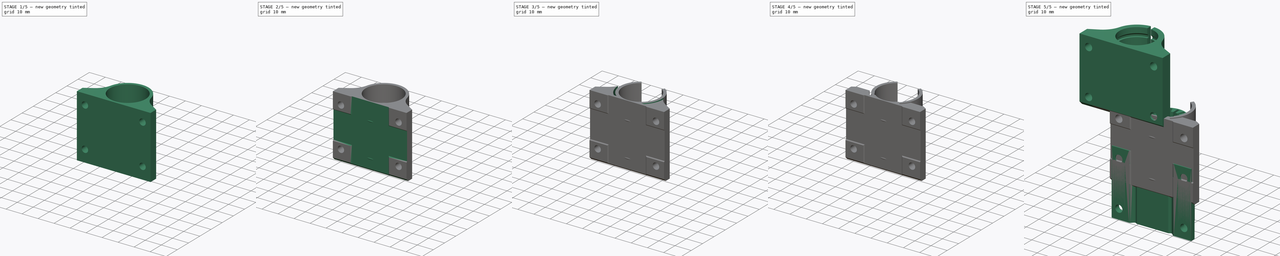
[diagram: build sequence overview — one tinted view per stage of 5, left to right]
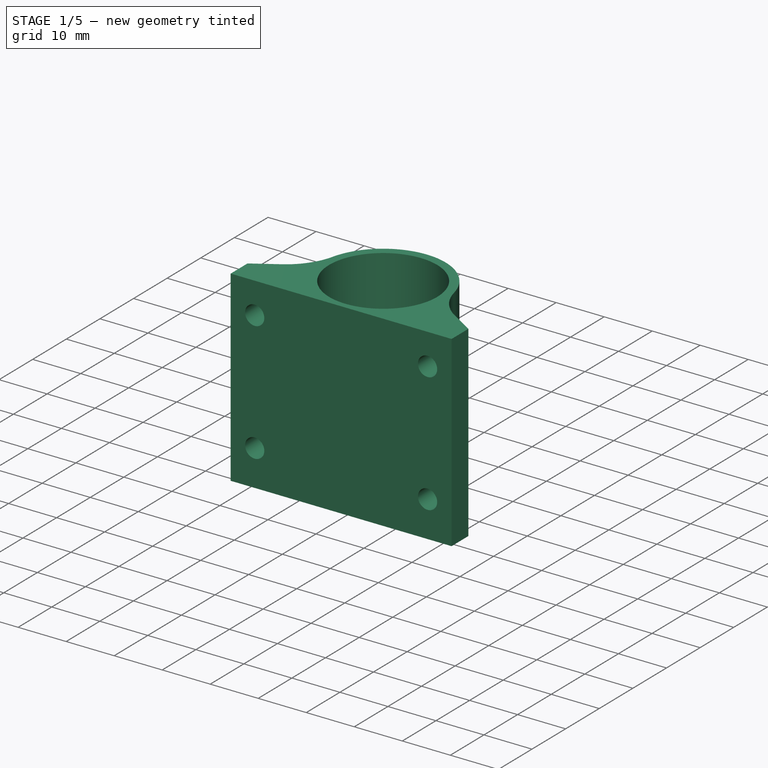
[diagram: stage 1 of 5 — iso view after this stage's code; geometry added in this stage tinted green]
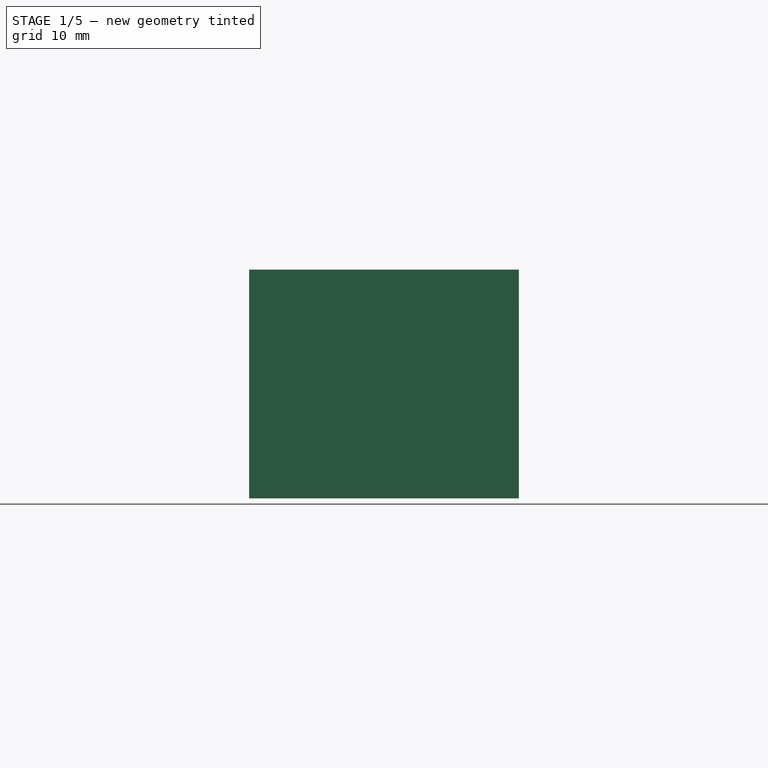
[diagram: stage 1 of 5 — front view after this stage's code; geometry added in this stage tinted green]
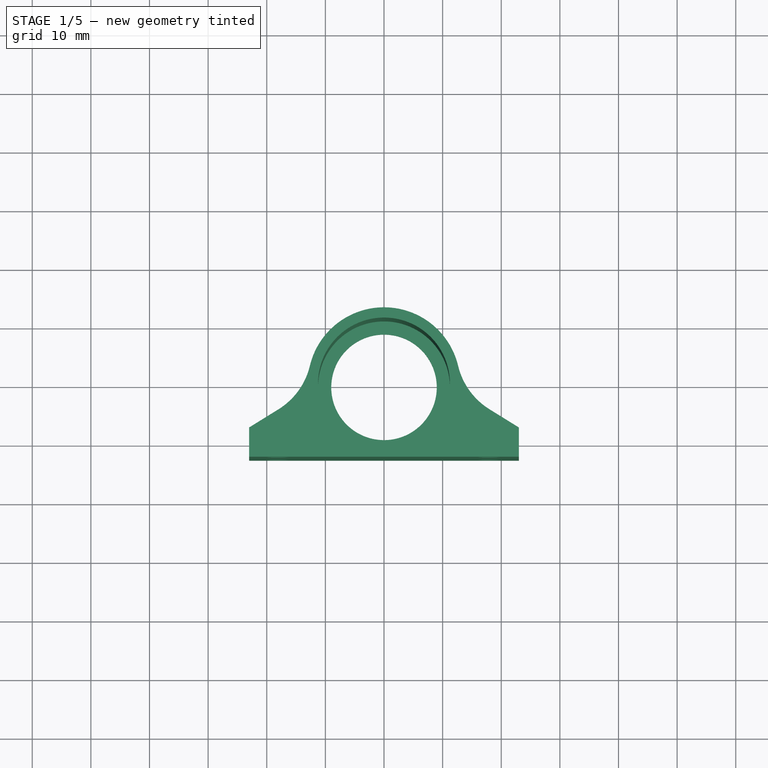
[diagram: stage 1 of 5 — top view after this stage's code; geometry added in this stage tinted green]
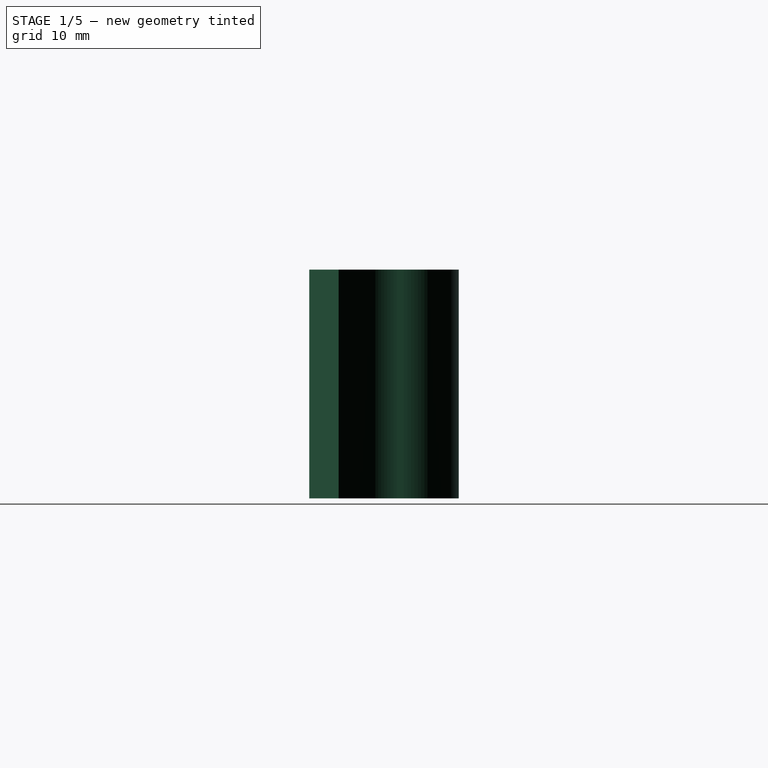
[diagram: stage 1 of 5 — right view after this stage's code; geometry added in this stage tinted green]
FCSTD DOCUMENT  (FreeCAD 0.17R13528 (Git))
Label: Y_bearing_holder_v1.4-12mm
License: CreativeCommons Attribution-ShareAlike
LicenseURL: http://creativecommons.org/licenses/by-sa/4.0/
objects: Sketcher::SketchObject×12, PartDesign::Pocket×10, Part::FeaturePython×3, PartDesign::Pad×1, PartDesign::Revolution×1, PartDesign::Chamfer×1, PartDesign::Fillet×1, PartDesign::Body×1
note: 42 computed .brp shape members not serialized (recipe doc carries the construction recipe); baked Part::Feature solids carry a one-line shape summary decoded from their .brp

FEATURE [Sketcher::SketchObject] Sketch
  MapMode = 5
  Support = -> [XY_Plane]
  sketch-geometry (9):
    g0: ArcOfCircle CenterX=-24.3182 CenterY=5.79854 CenterZ=0 NormalX=0 NormalY=0 NormalZ=1 AngleXU=0 Radius=12 StartAngle=5.26689 EndAngle=6.04911
    g1: ArcOfCircle CenterX=24.3182 CenterY=5.79854 CenterZ=0 NormalX=0 NormalY=0 NormalZ=1 AngleXU=0 Radius=12 StartAngle=3.37567 EndAngle=4.15789
    g2: LineSegment StartX=-18 StartY=-4.40341 StartZ=0 EndX=-23 EndY=-7.5 EndZ=0
    g3: LineSegment StartX=-23 StartY=-7.5 StartZ=0 EndX=-23 EndY=-12.5 EndZ=0
    g4: LineSegment StartX=-23 StartY=-12.5 StartZ=0 EndX=23 EndY=-12.5 EndZ=0
    g5: LineSegment StartX=23 StartY=-12.5 StartZ=0 EndX=23 EndY=-7.5 EndZ=0
    g6: LineSegment StartX=23 StartY=-7.5 StartZ=0 EndX=18 EndY=-4.40341 EndZ=0
    g7: ArcOfCircle CenterX=0 CenterY=0 CenterZ=0 NormalX=0 NormalY=0 NormalZ=1 AngleXU=0 Radius=13 StartAngle=0.234072 EndAngle=2.90752
    g8: Circle CenterX=0 CenterY=0 CenterZ=0 NormalX=0 NormalY=0 NormalZ=1 AngleXU=0 Radius=9
  constraints (26):
    c: Coincident(g2,g3)
    c: Coincident(g3,g4)
    c: Coincident(g5,g6)
    c: Vertical(g5)
    c: Vertical(g3)
    c: DistanceY(g3) = -12.5
    c: Equal(g3,g5)
    c: DistanceY(g5,g5) = 5
    c: Tangent(g1,g6) = 1.5708
    c: Tangent(g0,g2) = 1.5708
    c: Equal(g6,g2)
    c: DistanceX(g6,g6) = 5
    c: Radius(g0) = 12
    c: Equal(g1,g0)
    c: Coincident(g4,g5)
    c: Horizontal(g4)
    c: DistanceX(g4) = 23
    c: DistanceX(g4,g4) = 46
    c: DistanceX(g2,g2) = 5
    c: Coincident(g1,g7)
    c: Coincident(g0,g7)
    c: Radius(g7) = 13
    c: Tangent(g1,g7)
    c: Coincident(g7,g-1)
    c: Radius(g8) = 9
    c: Coincident(g7,g8)
FEATURE [PartDesign::Pad] Pad
  Length = 39
  Length2 = 100
  Profile = -> Sketch
  Type = 0
FEATURE [Sketcher::SketchObject] Sketch008
  MapMode = 5
  Placement = pos=(-23,0,0) rot=(0.57735,-0.57735,-0.57735;2.0944rad)
  sketch-geometry (4):
    g0: LineSegment StartX=12.5 StartY=29 StartZ=0 EndX=12 EndY=28.5 EndZ=0
    g1: LineSegment StartX=12 StartY=28.5 StartZ=0 EndX=12 EndY=11.5 EndZ=0
    g2: LineSegment StartX=12 StartY=11.5 StartZ=0 EndX=12.5 EndY=11 EndZ=0
    g3: LineSegment StartX=12.5 StartY=11 StartZ=0 EndX=12.5 EndY=29 EndZ=0
  constraints (12):
    c: Coincident(g0,g1)
    c: Vertical(g1)
    c: Coincident(g1,g2)
    c: Coincident(g2,g3)
    c: Coincident(g3,g0)
    c: Vertical(g3)
    c: Angle(g0) = -2.35619
    c: DistanceX(g2) = 12.5
    c: Angle(g2) = -0.785398
    c: DistanceY(g2) = 11
    c: DistanceX(g0,g0) = 0.5
    c: DistanceY(g0) = 29
FEATURE [Sketcher::SketchObject] Sketch009
  MapMode = 5
  Placement = pos=(0,0,39) rot=(0,0,1;0rad)
  sketch-geometry (4):
    g0: LineSegment StartX=0 StartY=0 StartZ=0 EndX=-10 EndY=15 EndZ=0
    g1: LineSegment StartX=-10 StartY=15 StartZ=0 EndX=10 EndY=15 EndZ=0
    g2: LineSegment StartX=10 StartY=15 StartZ=0 EndX=0 EndY=0 EndZ=0
    g3: LineSegment [constr] StartX=-5 StartY=7.5 StartZ=0 EndX=5 EndY=7.5 EndZ=0
  constraints (12):
    c: Coincident(g-1,g0)
    c: Coincident(g0,g1)
    c: Horizontal(g1)
    c: Coincident(g1,g2)
    c: Coincident(g2,g0)
    c: Equal(g2,g0)
    c: PointOnObject(g3,g0)
    c: PointOnObject(g3,g2)
    c: Horizontal(g3)
    c: DistanceX(g3,g3) = 10
    c: DistanceY(g2,g2) = 15
    c: DistanceX(g1,g1) = 20
FEATURE [Sketcher::SketchObject] Sketch010
  MapMode = 4
  Placement = pos=(1,0,0) rot=(0.57735,-0.57735,-0.57735;2.0944rad)
  sketch-geometry (5):
    g0: Circle CenterX=-11.375 CenterY=27.85 CenterZ=0 NormalX=0 NormalY=0 NormalZ=1 AngleXU=0 Radius=0.75
    g1: Circle CenterX=-11.375 CenterY=6.75 CenterZ=0 NormalX=0 NormalY=0 NormalZ=1 AngleXU=0 Radius=0.75
    g2: GeomPoint X=-11.375 Y=28.6 Z=0
    g3: GeomPoint X=-11.375 Y=6 Z=0
    g4: LineSegment [constr] StartX=-11.375 StartY=27.85 StartZ=0 EndX=-11.375 EndY=6.75 EndZ=0
  constraints (12):
    c: Radius(g1) = 0.75
    c: Equal(g1,g0)
    c: DistanceY(g1) = 6.75
    c: PointOnObject(g2,g0)
    c: PointOnObject(g3,g1)
    c: DistanceY(g3,g2) = 22.6
    c: Coincident(g4,g1)
    c: Vertical(g4)
    c: Coincident(g0,g4)
    c: DistanceX(g1) = -11.375
    c: PointOnObject(g3,g4)
    c: PointOnObject(g2,g4)
FEATURE [PartDesign::Pocket] Pocket
  BaseFeature = -> Pad
  Length = 38
  Length2 = 100
  Profile = -> Sketch001
  Refine = true
  Type = 0
FEATURE [PartDesign::Pocket] Pocket001
  BaseFeature = -> Pocket
  Length = 6
  Length2 = 100
  Profile = -> Sketch005
  Refine = true
  Type = 0
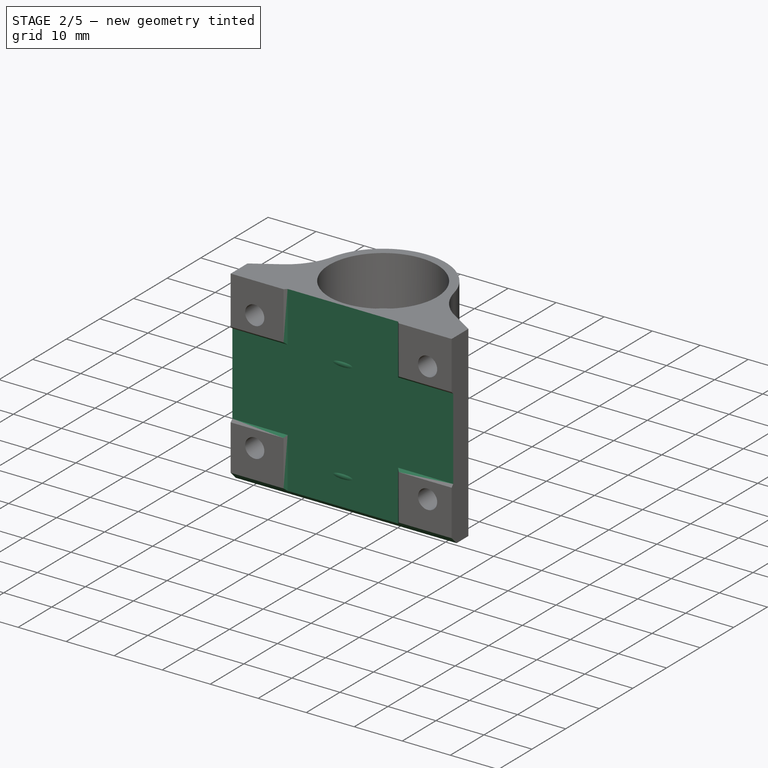
[diagram: stage 2 of 5 — iso view after this stage's code; geometry added in this stage tinted green]
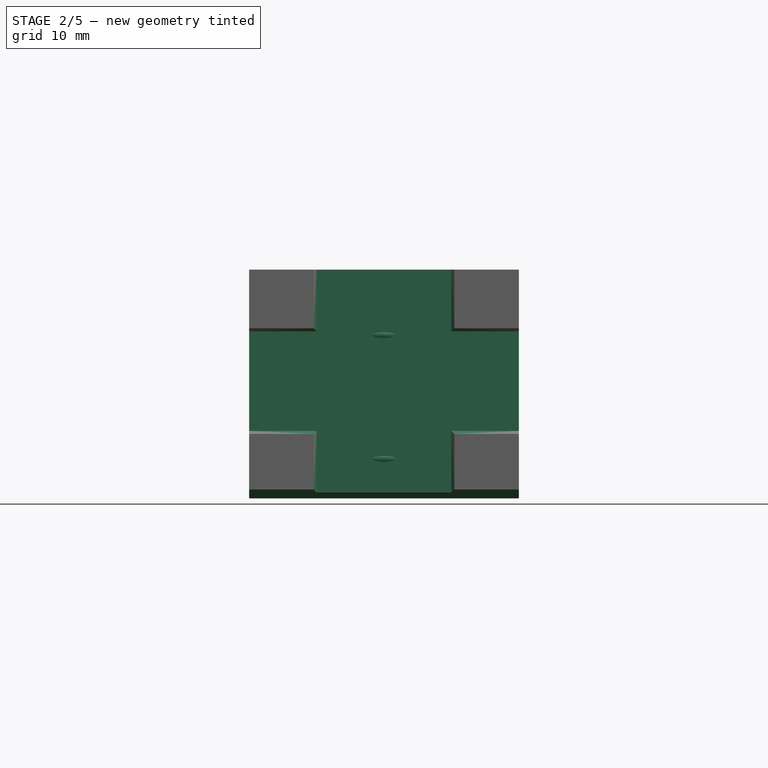
[diagram: stage 2 of 5 — front view after this stage's code; geometry added in this stage tinted green]
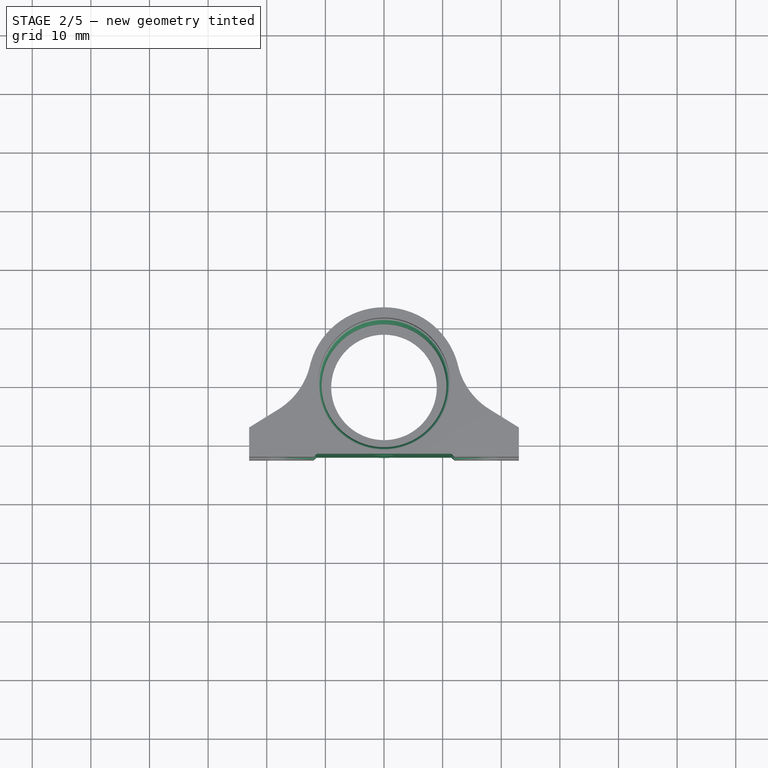
[diagram: stage 2 of 5 — top view after this stage's code; geometry added in this stage tinted green]
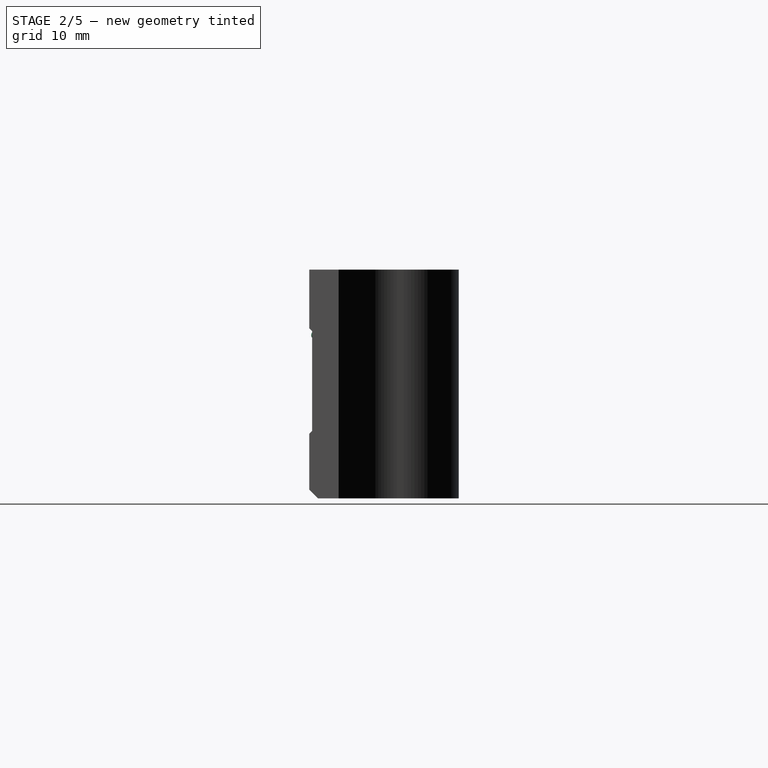
[diagram: stage 2 of 5 — right view after this stage's code; geometry added in this stage tinted green]
FEATURE [PartDesign::Pocket] Pocket002
  BaseFeature = -> Pocket001
  Length = 5
  Length2 = 100
  Profile = -> Sketch006
  Refine = true
  Type = 1
FEATURE [PartDesign::Pocket] Pocket003
  BaseFeature = -> Pocket002
  Length = 5
  Length2 = 100
  Profile = -> Sketch008
  Refine = true
  Type = 1
FEATURE [Sketcher::SketchObject] Sketch012
  MapMode = 5
  Placement = pos=(-23,0,0) rot=(0.57735,-0.57735,-0.57735;2.0944rad)
  sketch-geometry (3):
    g0: LineSegment StartX=11 StartY=0 StartZ=0 EndX=12.5 EndY=1.5 EndZ=0
    g1: LineSegment StartX=12.5 StartY=1.5 StartZ=0 EndX=12.5 EndY=0 EndZ=0
    g2: LineSegment StartX=12.5 StartY=0 StartZ=0 EndX=11 EndY=0 EndZ=0
  constraints (9):
    c: PointOnObject(g0,g-1)
    c: Coincident(g0,g1)
    c: PointOnObject(g1,g-1)
    c: Vertical(g1)
    c: Coincident(g1,g2)
    c: Coincident(g2,g0)
    c: Equal(g1,g2)
    c: DistanceX(g1) = 12.5
    c: DistanceY(g1,g1) = 1.5
FEATURE [Sketcher::SketchObject] Sketch013
  MapMode = 5
  Placement = pos=(0,-7,0) rot=(1,0,0;1.5708rad)
  sketch-geometry (8):
    g0: LineSegment [constr] StartX=-18 StartY=32.5 StartZ=0 EndX=18 EndY=32.5 EndZ=0
    g1: LineSegment [constr] StartX=18 StartY=32.5 StartZ=0 EndX=18 EndY=7.5 EndZ=0
    g2: LineSegment [constr] StartX=18 StartY=7.5 StartZ=0 EndX=-18 EndY=7.5 EndZ=0
    g3: LineSegment [constr] StartX=-18 StartY=7.5 StartZ=0 EndX=-18 EndY=32.5 EndZ=0
    g4: Circle CenterX=-18 CenterY=32.5 CenterZ=0 NormalX=0 NormalY=0 NormalZ=1 AngleXU=0 Radius=4
    g5: Circle CenterX=18 CenterY=32.5 CenterZ=0 NormalX=0 NormalY=0 NormalZ=1 AngleXU=0 Radius=4
    g6: Circle CenterX=18 CenterY=7.5 CenterZ=0 NormalX=0 NormalY=0 NormalZ=1 AngleXU=0 Radius=4
    g7: Circle CenterX=-18 CenterY=7.5 CenterZ=0 NormalX=0 NormalY=0 NormalZ=1 AngleXU=0 Radius=4
  constraints (20):
    c: Coincident(g0,g1)
    c: Coincident(g1,g2)
    c: Coincident(g2,g3)
    c: Coincident(g3,g0)
    c: Horizontal(g0)
    c: Horizontal(g2)
    c: Vertical(g1)
    c: Vertical(g3)
    c: Coincident(g4,g0)
    c: Coincident(g5,g0)
    c: Coincident(g6,g1)
    c: Coincident(g7,g2)
    c: DistanceY(g7) = 7.5
    c: DistanceX(g7) = -18
    c: DistanceX(g2,g2) = 36
    c: DistanceY(g1,g1) = 25
    c: Equal(g4,g5)
    c: Equal(g4,g6)
    c: Equal(g4,g7)
    c: Radius(g4) = 4
FEATURE [PartDesign::Revolution] Revolution
  Angle = 360
  Axis = (0,0,1)
  Base = (0,0,0)
  BaseFeature = -> Pocket003
  Profile = -> Sketch010
  ReferenceAxis = -> Z_Axis
  Refine = true
FEATURE [PartDesign::Pocket] Pocket004
  BaseFeature = -> Revolution
  Length = 5
  Length2 = 100
  Profile = -> Sketch012
  Refine = true
  Type = 1
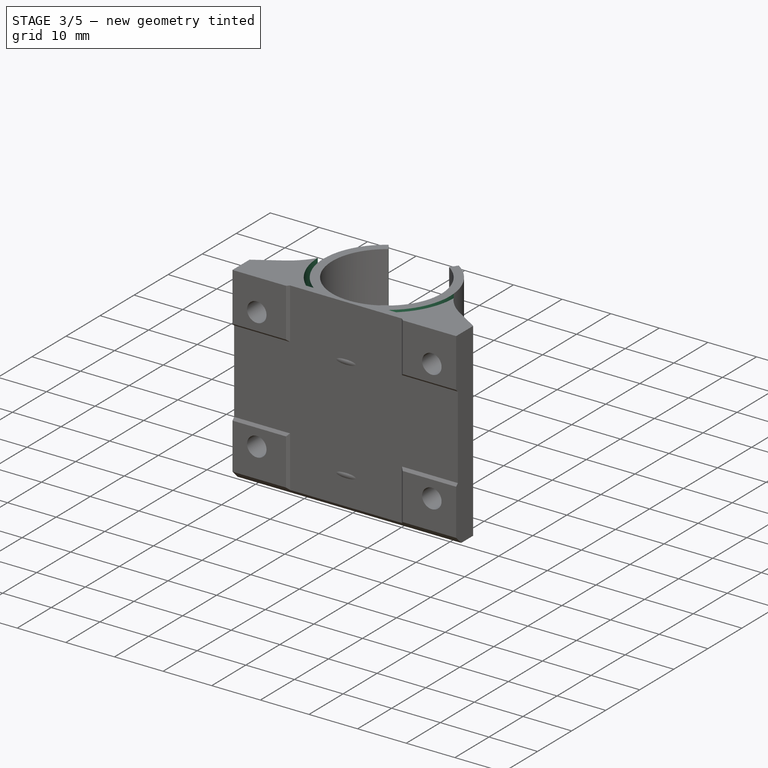
[diagram: stage 3 of 5 — iso view after this stage's code; geometry added in this stage tinted green]
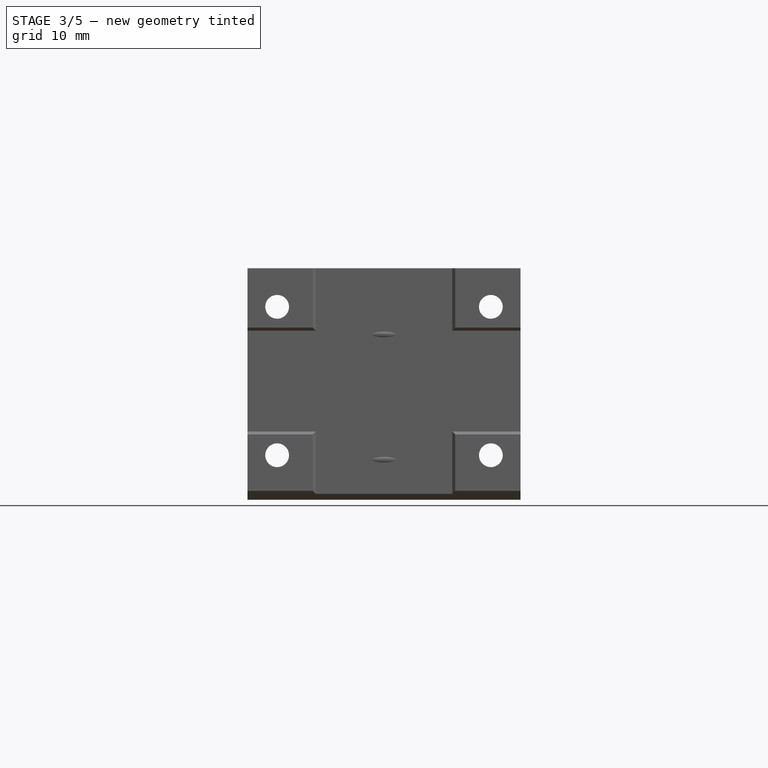
[diagram: stage 3 of 5 — front view after this stage's code; geometry added in this stage tinted green]
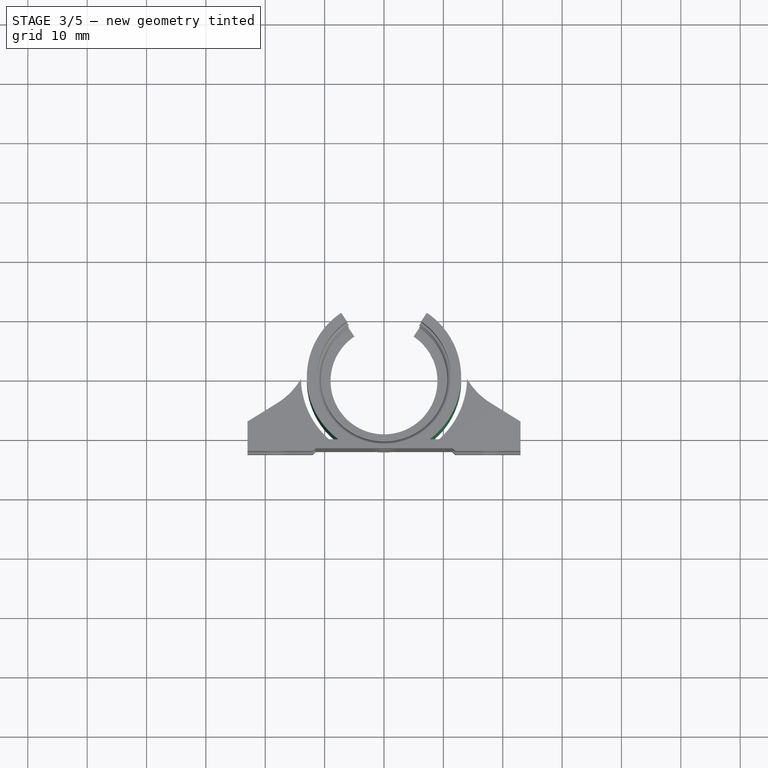
[diagram: stage 3 of 5 — top view after this stage's code; geometry added in this stage tinted green]
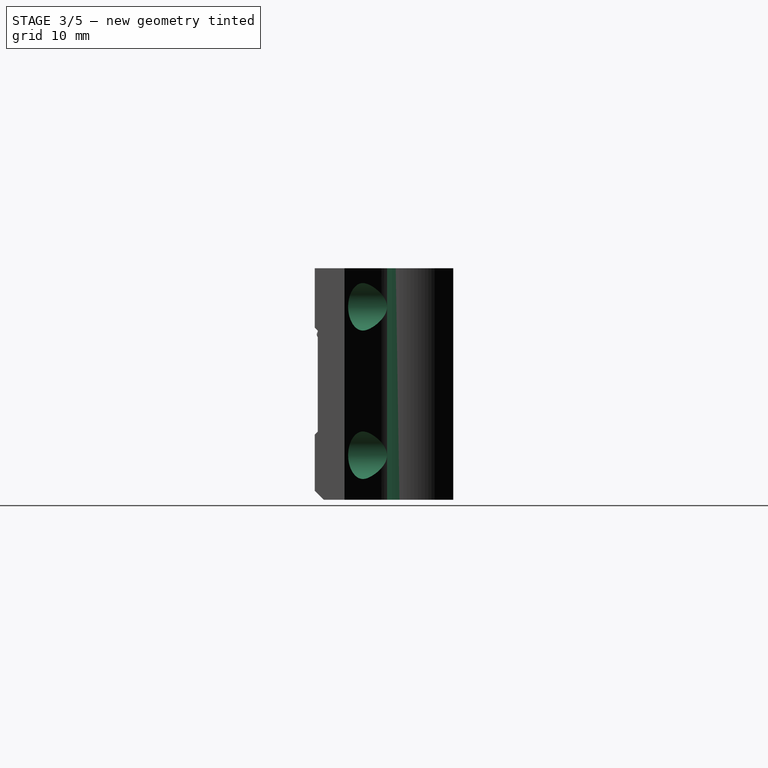
[diagram: stage 3 of 5 — right view after this stage's code; geometry added in this stage tinted green]
FEATURE [PartDesign::Pocket] Pocket005
  BaseFeature = -> Pocket004
  Length = 5
  Length2 = 100
  Profile = -> Sketch009
  Refine = true
  Type = 1
FEATURE [PartDesign::Pocket] Pocket006
  BaseFeature = -> Pocket005
  Length = 5
  Length2 = 100
  Profile = -> Sketch013
  Refine = true
  Type = 1
FEATURE [Sketcher::SketchObject] Sketch014
  MapMode = 5
  Placement = pos=(0,0,0) rot=(1,0,0;3.14159rad)
  Support = -> [Pocket006]
  sketch-geometry (5):
    g0: ArcOfCircle CenterX=0 CenterY=0 CenterZ=0 NormalX=0 NormalY=0 NormalZ=1 AngleXU=0 Radius=14 StartAngle=2.29353 EndAngle=7.13125
    g1: ArcOfCircle CenterX=0 CenterY=0 CenterZ=0 NormalX=0 NormalY=0 NormalZ=1 AngleXU=0 Radius=13 StartAngle=2.20137 EndAngle=7.22341
    g2: LineSegment [constr] StartX=-7.66485 StartY=10.5 StartZ=0 EndX=7.66485 EndY=10.5 EndZ=0
    g3: LineSegment StartX=-7.66485 StartY=10.5 StartZ=0 EndX=-9.26013 EndY=10.5 EndZ=0
    g4: LineSegment StartX=9.26013 StartY=10.5 StartZ=0 EndX=7.66485 EndY=10.5 EndZ=0
  constraints (14):
    c: Coincident(g0,g-1)
    c: Coincident(g1,g0)
    c: Coincident(g2,g1)
    c: Coincident(g2,g1)
    c: Horizontal(g2)
    c: PointOnObject(g0,g2)
    c: DistanceY(g1) = 10.5
    c: PointOnObject(g0,g2)
    c: Coincident(g3,g1)
    c: Coincident(g3,g0)
    c: Coincident(g4,g0)
    c: Coincident(g4,g1)
    c: Radius(g1) = 13
    c: Radius(g0) = 14
FEATURE [PartDesign::Pocket] Pocket007
  BaseFeature = -> Pocket006
  Length = 5
  Length2 = 100
  Profile = -> Sketch014
  Refine = true
  Type = 1
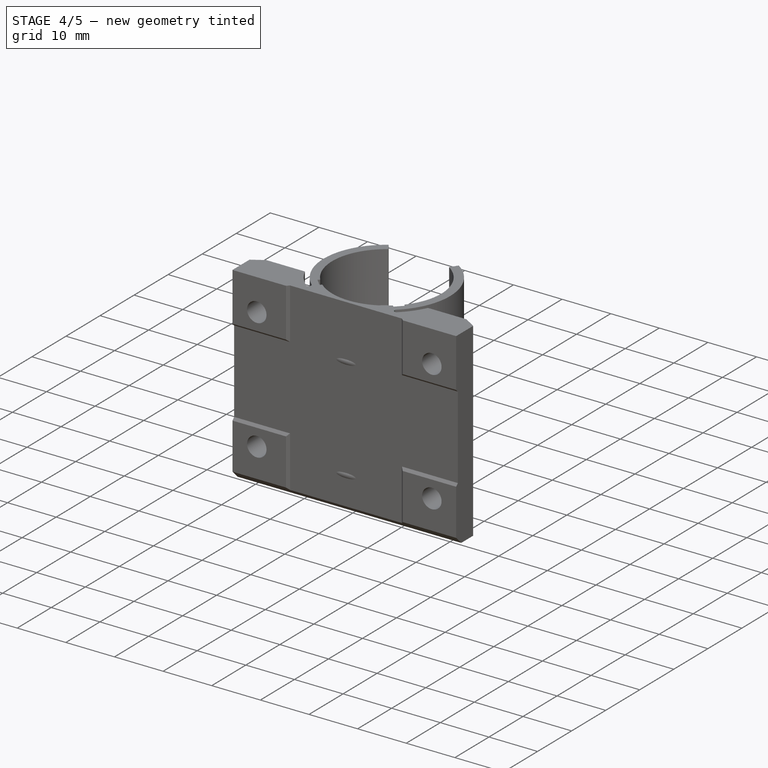
[diagram: stage 4 of 5 — iso view after this stage's code; geometry added in this stage tinted green]
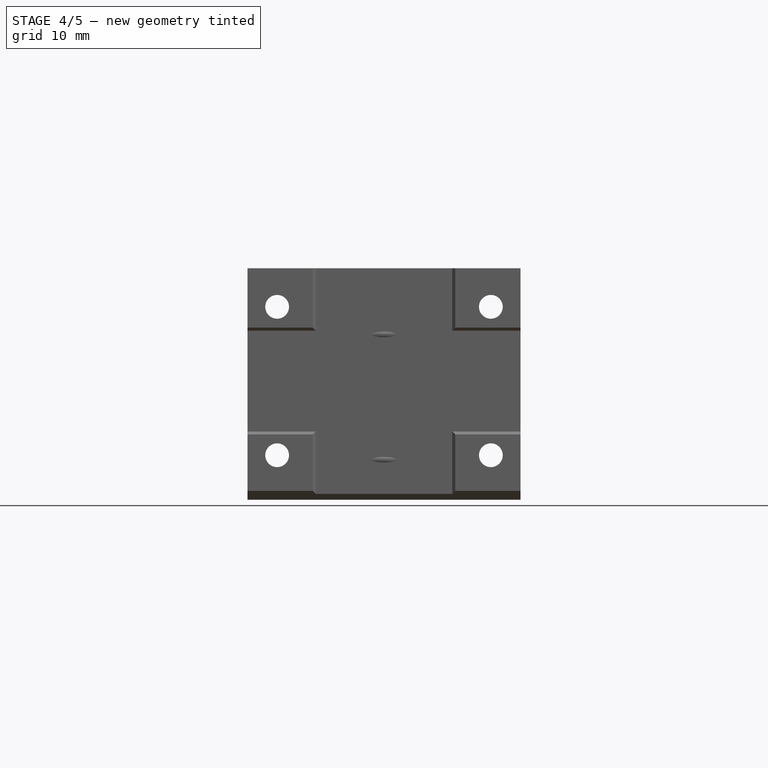
[diagram: stage 4 of 5 — front view after this stage's code; geometry added in this stage tinted green]
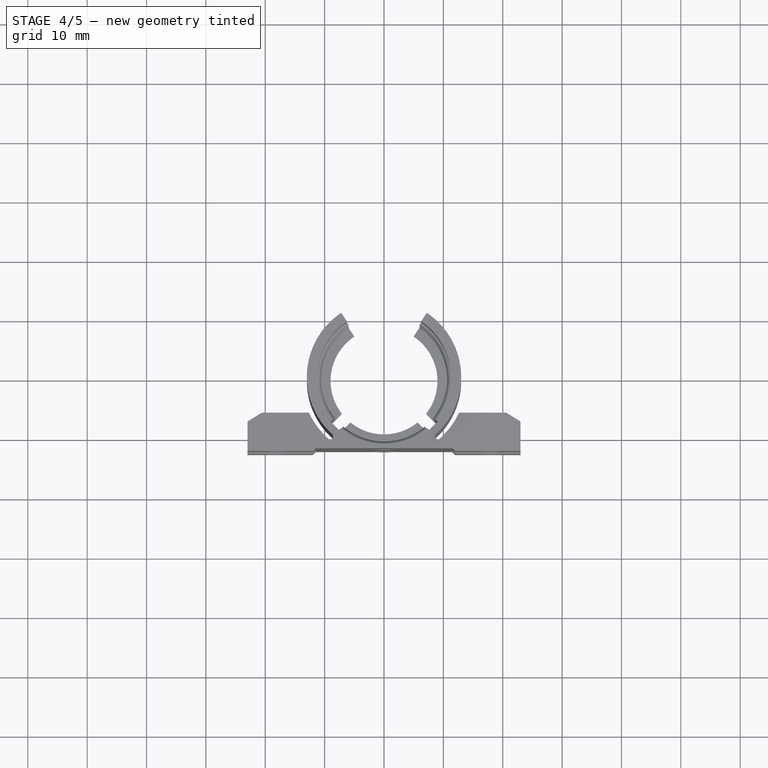
[diagram: stage 4 of 5 — top view after this stage's code; geometry added in this stage tinted green]
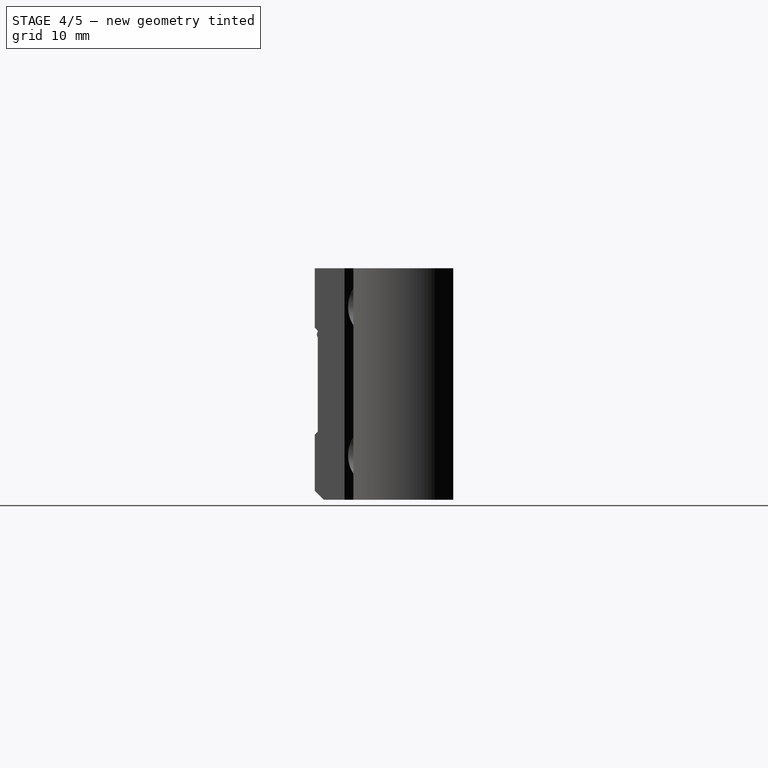
[diagram: stage 4 of 5 — right view after this stage's code; geometry added in this stage tinted green]
FEATURE [Sketcher::SketchObject] Sketch011
  MapMode = 5
  Placement = pos=(0,0,39) rot=(0,0,1;0rad)
  Support = -> [Pocket007]
  sketch-geometry (7):
    g0: LineSegment StartX=0 StartY=1.5 StartZ=0 EndX=-9.01561 EndY=-7.51561 EndZ=0
    g1: LineSegment StartX=-9.01561 StartY=-7.51561 StartZ=0 EndX=-7.6014 EndY=-8.92983 EndZ=0
    g2: LineSegment StartX=-7.6014 StartY=-8.92983 StartZ=0 EndX=0 EndY=-1.32843 EndZ=0
    g3: LineSegment StartX=0 StartY=-1.32843 StartZ=0 EndX=7.6014 EndY=-8.92983 EndZ=0
    g4: LineSegment StartX=7.6014 StartY=-8.92983 StartZ=0 EndX=9.01561 EndY=-7.51561 EndZ=0
    g5: LineSegment StartX=9.01561 StartY=-7.51561 StartZ=0 EndX=0 EndY=1.5 EndZ=0
    g6: LineSegment [constr] StartX=7.6014 StartY=-8.92983 StartZ=0 EndX=-7.6014 EndY=-8.92983 EndZ=0
  constraints (20):
    c: Coincident(g0,g1)
    c: Coincident(g1,g2)
    c: PointOnObject(g2,g-2)
    c: Coincident(g2,g3)
    c: Coincident(g3,g4)
    c: Coincident(g4,g5)
    c: PointOnObject(g5,g-2)
    c: Coincident(g0,g5)
    c: Coincident(g6,g3)
    c: Coincident(g6,g1)
    c: Horizontal(g6)
    c: Equal(g2,g3)
    c: Equal(g0,g5)
    c: Equal(g4,g1)
    c: Angle(g4) = 0.785398
    c: Perpendicular(g4,g3)
    c: Perpendicular(g1,g0)
    c: Distance(g4,g3) = 2
    c: DistanceY(g-1,g0) = 1.5
    c: Distance(g3) = 10.75
FEATURE [PartDesign::Pocket] Pocket008
  BaseFeature = -> Pocket007
  Length = 5
  Length2 = 100
  Profile = -> Sketch011
  Refine = true
  Type = 1
FEATURE [Sketcher::SketchObject] Sketch015
  MapMode = 5
  Placement = pos=(0,0,39) rot=(0,0,1;0rad)
  sketch-geometry (8):
    g0: LineSegment StartX=-22.25 StartY=-6 StartZ=0 EndX=-22.25 EndY=0 EndZ=0
    g1: LineSegment StartX=-13.5 StartY=0 StartZ=0 EndX=-12.5 EndY=-6 EndZ=0
    g2: LineSegment StartX=-22.25 StartY=0 StartZ=0 EndX=-13.5 EndY=0 EndZ=0
    g3: LineSegment StartX=-22.25 StartY=-6 StartZ=0 EndX=-12.5 EndY=-6 EndZ=0
    g4: LineSegment StartX=22.25 StartY=-6 StartZ=0 EndX=22.25 EndY=0 EndZ=0
    g5: LineSegment StartX=13.5 StartY=0 StartZ=0 EndX=12.5 EndY=-6 EndZ=0
    g6: LineSegment StartX=22.25 StartY=0 StartZ=0 EndX=13.5 EndY=0 EndZ=0
    g7: LineSegment StartX=22.25 StartY=-6 StartZ=0 EndX=12.5 EndY=-6 EndZ=0
  constraints (24):
    c: Vertical(g0)
    c: PointOnObject(g1,g-1)
    c: Coincident(g2,g0)
    c: Coincident(g2,g1)
    c: Horizontal(g2)
    c: Coincident(g3,g0)
    c: Coincident(g3,g1)
    c: Horizontal(g3)
    c: DistanceX(g1) = -13.5
    c: DistanceX(g2,g2) = 8.75
    c: DistanceY(g1,g1) = 6
    c: DistanceX(g3,g3) = 9.75
    c: Vertical(g4)
    c: Coincident(g6,g4)
    c: Coincident(g6,g5)
    c: Horizontal(g6)
    c: Coincident(g7,g4)
    c: Coincident(g7,g5)
    c: Horizontal(g7)
    c: DistanceX(g5) = 13.5
    c: PointOnObject(g4,g-1)
    c: DistanceX(g6,g6) = 8.75
    c: DistanceX(g7,g7) = 9.75
    c: DistanceY(g5,g5) = 6
FEATURE [PartDesign::Pocket] Pocket009
  BaseFeature = -> Pocket008
  Length = 5
  Length2 = 100
  Profile = -> Sketch015
  Refine = true
  Type = 1
FEATURE [PartDesign::Chamfer] Chamfer
  Base = -> Pocket009 [Edge14,Edge33]
  BaseFeature = -> Pocket009
  Size = 2
FEATURE [PartDesign::Fillet] Fillet
  Base = -> Chamfer [Edge102,Edge48]
  BaseFeature = -> Chamfer
  Radius = 0.5
FEATURE [PartDesign::Body] Body
  Group = -> [Sketch,Pad,Sketch001,Sketch005,Sketch006,Sketch008,Sketch009,Sketch010,Pocket,Pocket001,Pocket002,Pocket003,Sketch011,Sketch012,Sketch013,Revolution,Pocket004,Pocket005,Pocket006,Sketch014,Pocket007,Pocket008,Sketch015,Pocket009,Chamfer,Fillet]
  Origin = -> Origin
  Tip = -> Fillet
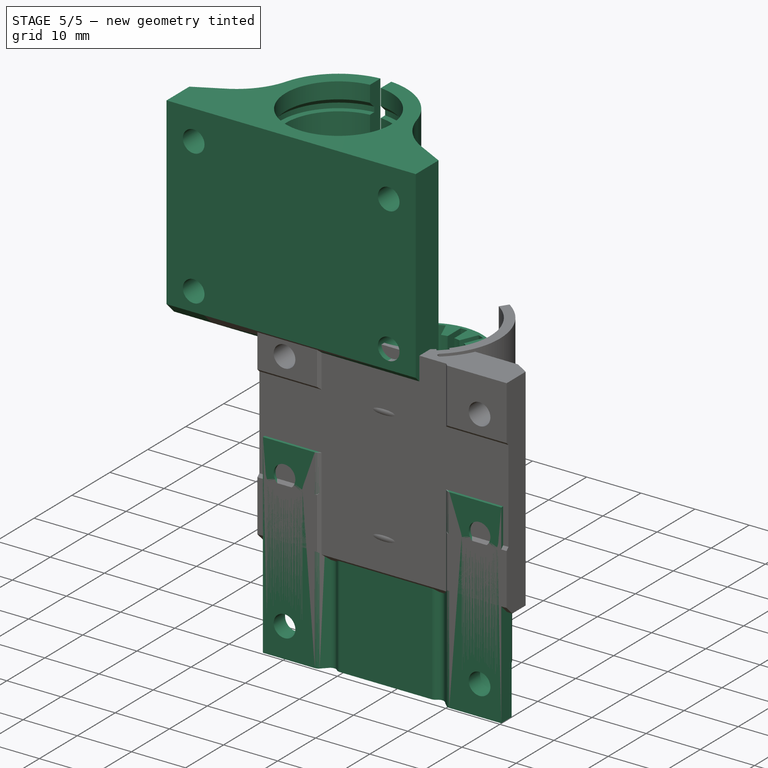
[diagram: stage 5 of 5 — iso view after this stage's code; geometry added in this stage tinted green]
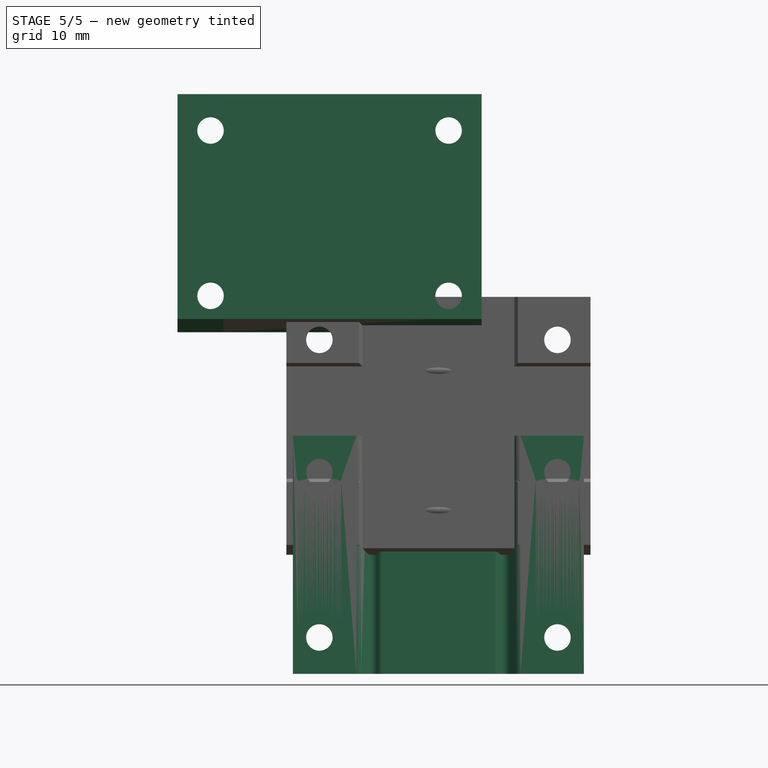
[diagram: stage 5 of 5 — front view after this stage's code; geometry added in this stage tinted green]
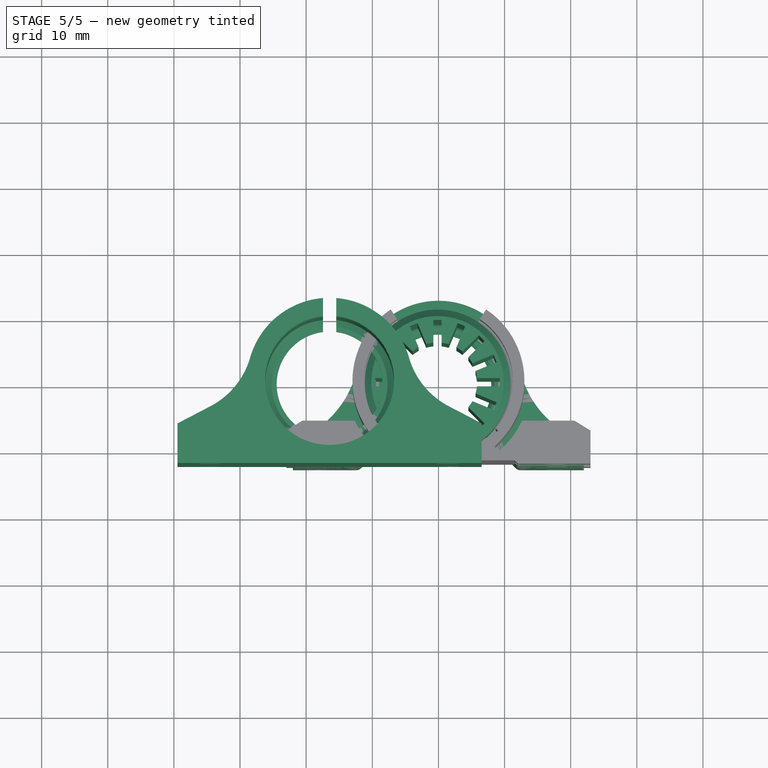
[diagram: stage 5 of 5 — top view after this stage's code; geometry added in this stage tinted green]
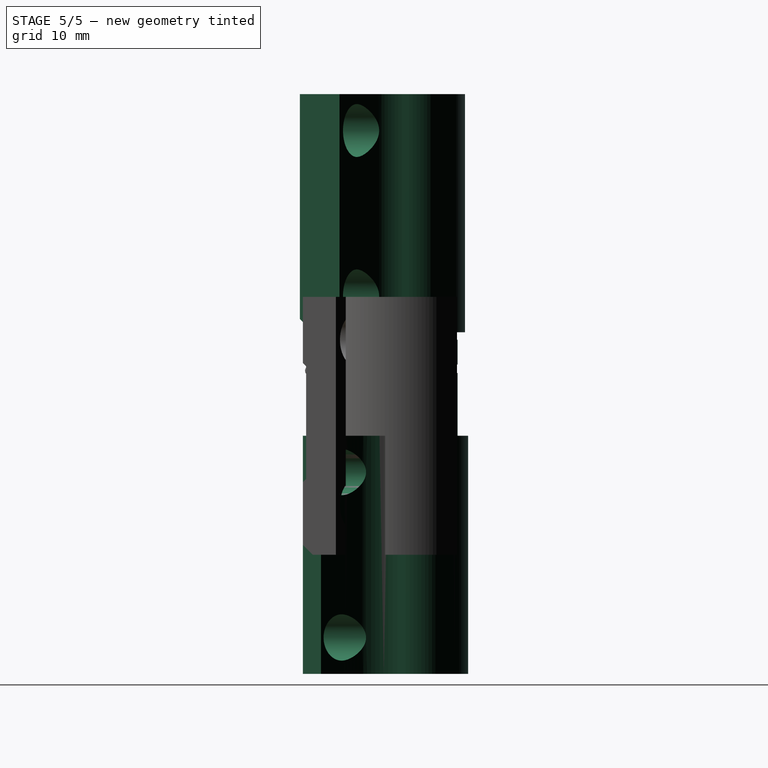
[diagram: stage 5 of 5 — right view after this stage's code; geometry added in this stage tinted green]
FEATURE [Part::FeaturePython] Quiver_Y_bearing_holder_01  # a2plus imported part (geometry in sourceFile) (typed FeaturePython)
  fixedPosition = true
  sourceFile = <userpath>/Projects/taz-quiver/Production_parts/Printed_parts/Y/bearing_holder/Quiver_Y_bearing_holder.fcstd
  timeLastImport = 1.52536e+09
  updateColors = true
FEATURE [Sketcher::SketchObject] Sketch001
  MapMode = 5
  Placement = pos=(0,0,39) rot=(0,0,1;0rad)
  Support = -> [Pad]
  sketch-geometry (1):
    g0: Circle CenterX=0 CenterY=0 CenterZ=0 NormalX=0 NormalY=0 NormalZ=1 AngleXU=0 Radius=11.25
  constraints (2):
    c: Coincident(g0,g-1)
    c: Radius(g0) = 11.25
FEATURE [Sketcher::SketchObject] Sketch005
  MapMode = 5
  Placement = pos=(0,-13,0) rot=(1,0,0;1.5708rad)
  sketch-geometry (12):
    g0: Circle CenterX=-18 CenterY=7.5 CenterZ=0 NormalX=0 NormalY=0 NormalZ=1 AngleXU=0 Radius=2
    g1: Circle [constr] CenterX=-18 CenterY=7.5 CenterZ=0 NormalX=0 NormalY=0 NormalZ=1 AngleXU=0 Radius=4
    g2: Circle [constr] CenterX=18 CenterY=7.5 CenterZ=0 NormalX=0 NormalY=0 NormalZ=1 AngleXU=0 Radius=4
    g3: Circle CenterX=18 CenterY=7.5 CenterZ=0 NormalX=0 NormalY=0 NormalZ=1 AngleXU=0 Radius=2
    g4: Circle CenterX=18 CenterY=32.5 CenterZ=0 NormalX=0 NormalY=0 NormalZ=1 AngleXU=0 Radius=2
    g5: Circle [constr] CenterX=18 CenterY=32.5 CenterZ=0 NormalX=0 NormalY=0 NormalZ=1 AngleXU=0 Radius=4
    g6: Circle CenterX=-18 CenterY=32.5 CenterZ=0 NormalX=0 NormalY=0 NormalZ=1 AngleXU=0 Radius=2
    g7: Circle [constr] CenterX=-18 CenterY=32.5 CenterZ=0 NormalX=0 NormalY=0 NormalZ=1 AngleXU=0 Radius=4
    g8: LineSegment [constr] StartX=-18 StartY=7.5 StartZ=0 EndX=18 EndY=7.5 EndZ=0
    g9: LineSegment [constr] StartX=18 StartY=7.5 StartZ=0 EndX=18 EndY=32.5 EndZ=0
    g10: LineSegment [constr] StartX=18 StartY=32.5 StartZ=0 EndX=-18 EndY=32.5 EndZ=0
    g11: LineSegment [constr] StartX=-18 StartY=32.5 StartZ=0 EndX=-18 EndY=7.5 EndZ=0
  constraints (28):
    c: Coincident(g6,g7)
    c: Coincident(g0,g1)
    c: Coincident(g2,g3)
    c: Coincident(g4,g5)
    c: Radius(g4) = 2
    c: Equal(g4,g6)
    c: Equal(g4,g0)
    c: Equal(g4,g3)
    c: Equal(g2,g5)
    c: Equal(g5,g7)
    c: Equal(g7,g1)
    c: Coincident(g8,g9)
    c: Coincident(g9,g10)
    c: Coincident(g10,g11)
    c: Coincident(g11,g8)
    c: Horizontal(g8)
    c: Horizontal(g10)
    c: Vertical(g9)
    c: Vertical(g11)
    c: Coincident(g6,g10)
    c: Coincident(g4,g9)
    c: Coincident(g2,g8)
    c: Coincident(g0,g8)
    c: DistanceX(g0) = -18
    c: DistanceX(g8,g8) = 36
    c: Radius(g2) = 4
    c: DistanceY(g0) = 7.5
    c: DistanceY(g11,g11) = 25
FEATURE [Part::FeaturePython] b_12mm_high_precision_bushing_001_  label="12mm_high_precision_bushing_001"  # a2plus imported part (geometry in sourceFile) (typed FeaturePython)
  Placement = pos=(-0.139148,-0.089838,1.48198) rot=(1,0,0;1.5708rad)
  a2p_Version = V0.1
  fixedPosition = false
  sourceFile = .\..\..\assemblies\12mm_high_precision_bushing.fcstd
  subassemblyImport = false
  timeLastImport = 1.58163e+09
  updateColors = true
FEATURE [Sketcher::SketchObject] Sketch006
  MapMode = 5
  Placement = pos=(0,0,39) rot=(0,0,1;0rad)
  sketch-geometry (4):
    g0: LineSegment StartX=-12 StartY=-12.5 StartZ=0 EndX=-11.5 EndY=-12 EndZ=0
    g1: LineSegment StartX=-11.5 StartY=-12 StartZ=0 EndX=11.5 EndY=-12 EndZ=0
    g2: LineSegment StartX=11.5 StartY=-12 StartZ=0 EndX=12 EndY=-12.5 EndZ=0
    g3: LineSegment StartX=12 StartY=-12.5 StartZ=0 EndX=-12 EndY=-12.5 EndZ=0
  constraints (12):
    c: Coincident(g0,g1)
    c: Horizontal(g1)
    c: Coincident(g1,g2)
    c: Coincident(g2,g3)
    c: Coincident(g3,g0)
    c: Horizontal(g3)
    c: DistanceX(g0) = -12
    c: DistanceX(g3,g3) = 24
    c: DistanceY(g2) = -12.5
    c: DistanceX(g2,g2) = 0.5
    c: Equal(g2,g0)
    c: DistanceY(g2,g2) = 0.5
FEATURE [Part::FeaturePython] b_Y_bearing_holder_v1_3_1_001_  label="Y_bearing_holder_v1.3.1_001"  # a2plus imported part (geometry in sourceFile) (typed FeaturePython)
  Placement = pos=(-16.4586,-0.446638,51.6547) rot=(0,0,1;0rad)
  a2p_Version = V0.1
  fixedPosition = false
  sourceFile = .\Y_bearing_holder_v1.3.1.fcstd
  subassemblyImport = false
  timeLastImport = 1.5811e+09
  updateColors = true
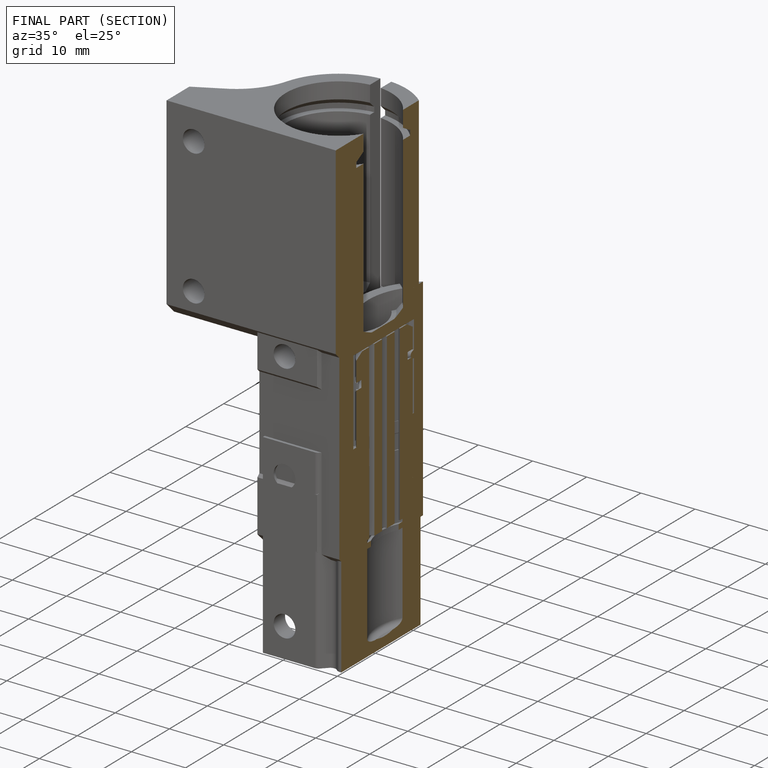
[diagram: finished part — half-section view (interior)]
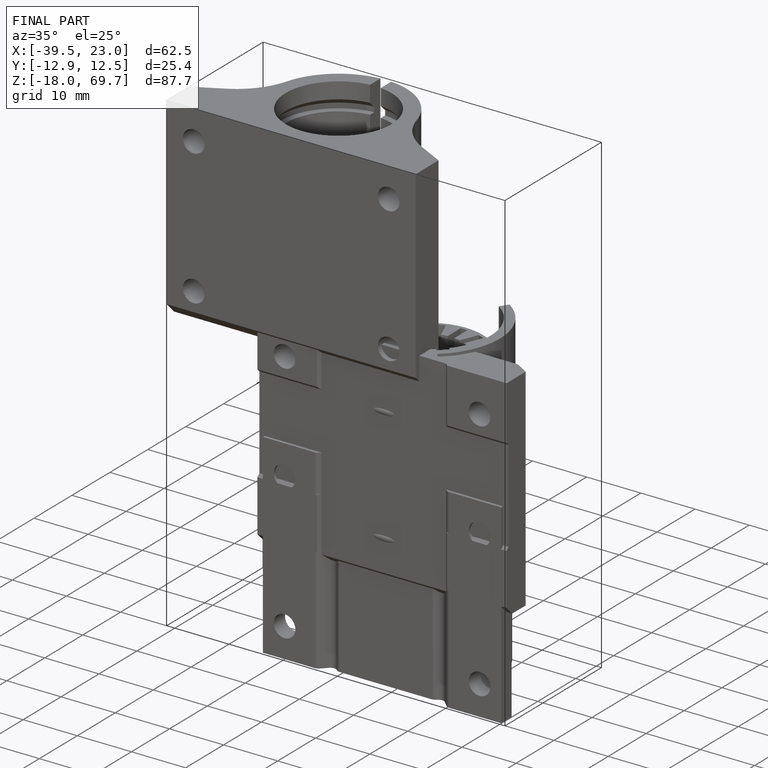
[diagram: finished part — iso view with bounding-box wireframe]
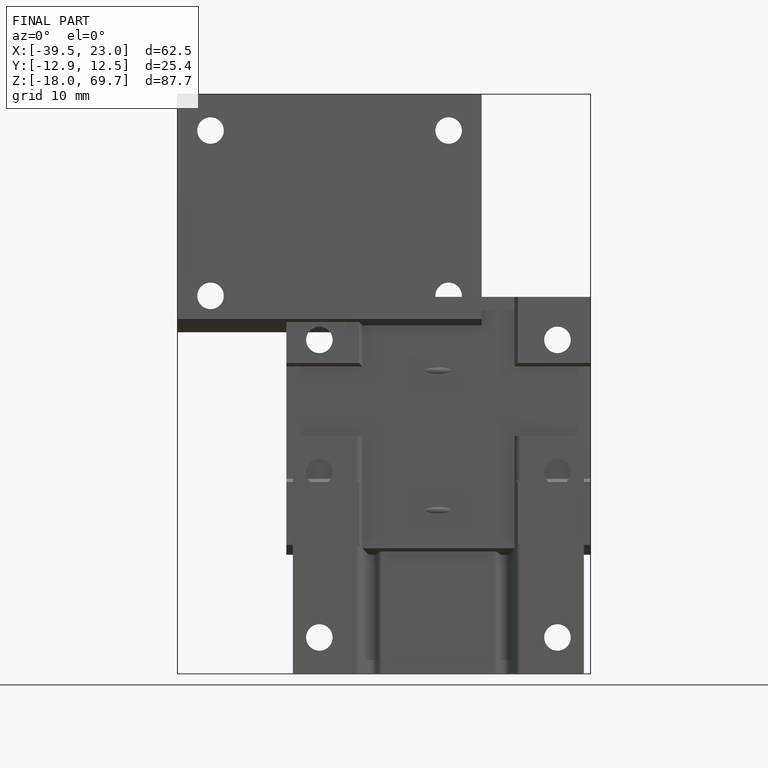
[diagram: finished part — front view with bounding-box wireframe]
